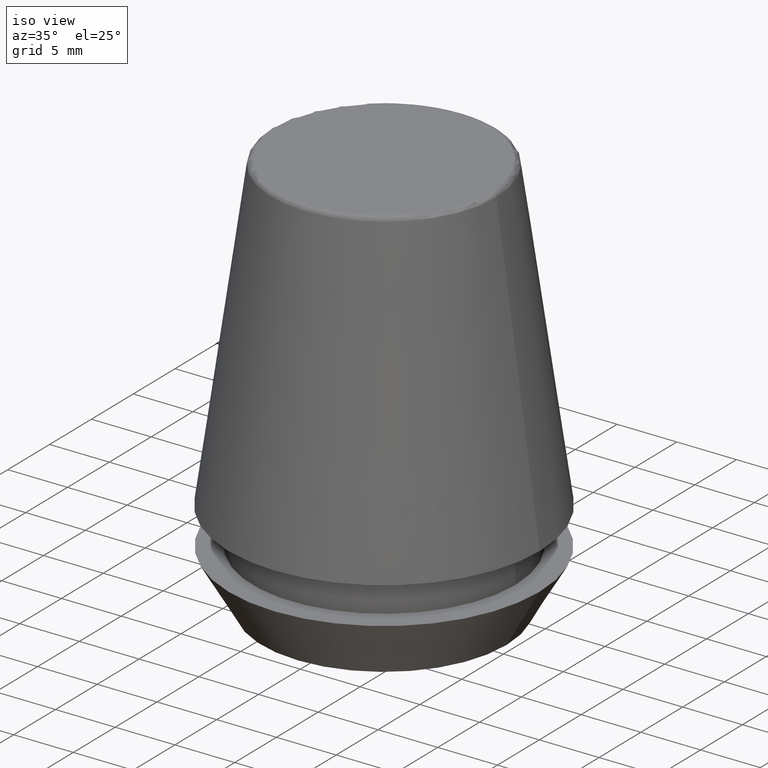
[diagram: clean part render]
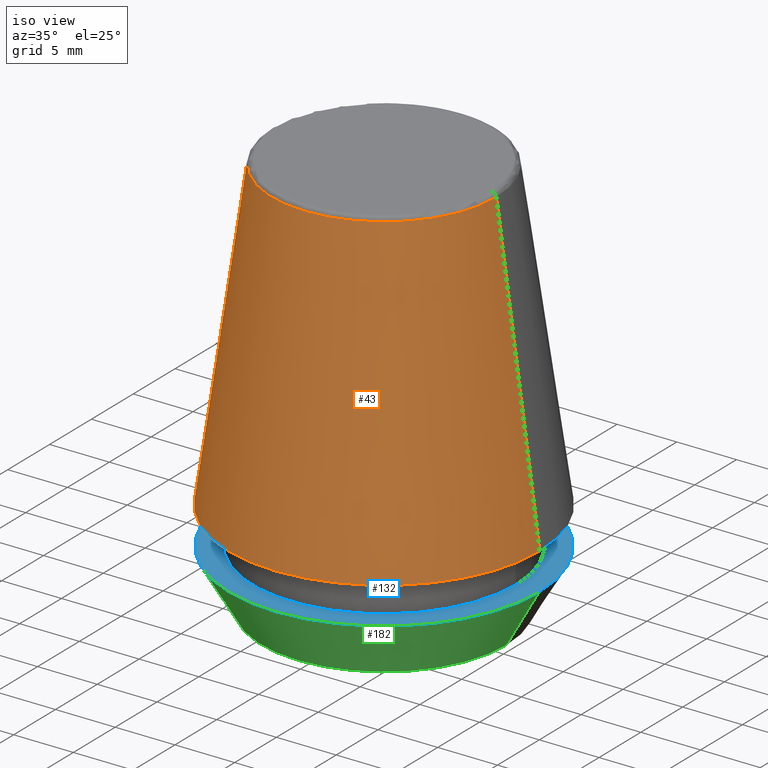
[diagram: same view with three faces highlighted in distinct colors, each labeled with its STEP entity id]
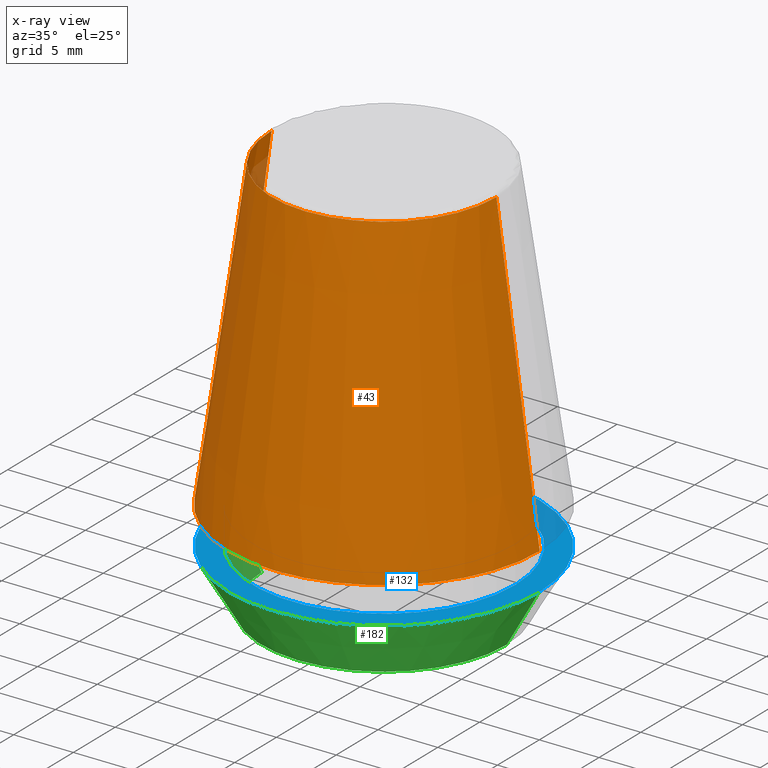
[diagram: x-ray of the same camera — body ghosted, the three highlighted faces saturated]
A machine part, iso view with three faces highlighted in distinct colors.
The next image is the same camera in x-ray (body ghosted, the three faces saturated) — at least one of them is partly hidden behind the body in this view.
Their STEP definitions:

[orange] entity #43 — the highlighted conical surface has half-angle 8 deg.
#10 = DIRECTION ( 'NONE',  ( 1.000000000000000000, 0.0000000000000000000, 0.0000000000000000000 ) ) ;
#43 = ADVANCED_FACE ( 'NONE', ( #188 ), #344, .T. ) ;
#49 = CARTESIAN_POINT ( 'NONE',  ( 13.03657776635556700, 1.596520323340289600E-015, 7.842050807568876200 ) ) ;
#69 = DIRECTION ( 'NONE',  ( 1.000000000000000000, 0.0000000000000000000, 0.0000000000000000000 ) ) ;
#77 = DIRECTION ( 'NONE',  ( 0.1391731009600587800, 1.704378926181474000E-017, -0.9902680687415712500 ) ) ;
#86 = CIRCLE ( 'NONE', #266, 9.408710285118862900 ) ;
#107 = DIRECTION ( 'NONE',  ( -0.0000000000000000000, -0.0000000000000000000, 1.000000000000000000 ) ) ;
#108 = CARTESIAN_POINT ( 'NONE',  ( -9.408710285118862900, 0.0000000000000000000, 33.65566924038402900 ) ) ;
#111 = DIRECTION ( 'NONE',  ( 0.0000000000000000000, 0.0000000000000000000, -1.000000000000000000 ) ) ;
#118 = ORIENTED_EDGE ( 'NONE', *, *, #175, .T. ) ;
#120 = LINE ( 'NONE', #290, #317 ) ;
#154 = VERTEX_POINT ( 'NONE', #108 ) ;
#155 = CARTESIAN_POINT ( 'NONE',  ( 9.408710285118862900, 1.374377508408924700E-015, 33.65566924038402900 ) ) ;
#156 = CIRCLE ( 'NONE', #251, 13.03657776635556700 ) ;
#159 = CARTESIAN_POINT ( 'NONE',  ( 0.0000000000000000000, 0.0000000000000000000, 33.65566924038402900 ) ) ;
#168 = DIRECTION ( 'NONE',  ( -1.000000000000000000, 0.0000000000000000000, 0.0000000000000000000 ) ) ;
#175 = EDGE_CURVE ( 'NONE', #338, #232, #156, .T. ) ;
#178 = EDGE_LOOP ( 'NONE', ( #181, #384, #292, #118 ) ) ;
#181 = ORIENTED_EDGE ( 'NONE', *, *, #366, .F. ) ;
#188 = FACE_OUTER_BOUND ( 'NONE', #178, .T. ) ;
#217 = EDGE_CURVE ( 'NONE', #154, #265, #86, .T. ) ;
#232 = VERTEX_POINT ( 'NONE', #329 ) ;
#250 = DIRECTION ( 'NONE',  ( -0.1391731009600587800, 0.0000000000000000000, -0.9902680687415712500 ) ) ;
#251 = AXIS2_PLACEMENT_3D ( 'NONE', #305, #107, #10 ) ;
#265 = VERTEX_POINT ( 'NONE', #155 ) ;
#266 = AXIS2_PLACEMENT_3D ( 'NONE', #159, #361, #69 ) ;
#273 = LINE ( 'NONE', #49, #375 ) ;
#284 = AXIS2_PLACEMENT_3D ( 'NONE', #356, #111, #168 ) ;
#290 = CARTESIAN_POINT ( 'NONE',  ( -13.03657776635556700, 0.0000000000000000000, 7.842050807568876200 ) ) ;
#292 = ORIENTED_EDGE ( 'NONE', *, *, #343, .T. ) ;
#298 = CARTESIAN_POINT ( 'NONE',  ( -13.03657776635556700, 0.0000000000000000000, 7.842050807568876200 ) ) ;
#305 = CARTESIAN_POINT ( 'NONE',  ( 0.0000000000000000000, 0.0000000000000000000, 7.842050807568876200 ) ) ;
#317 = VECTOR ( 'NONE', #250, 1000.000000000000000 ) ;
#329 = CARTESIAN_POINT ( 'NONE',  ( 13.03657776635556700, 1.596520323340289600E-015, 7.842050807568876200 ) ) ;
#338 = VERTEX_POINT ( 'NONE', #298 ) ;
#343 = EDGE_CURVE ( 'NONE', #154, #338, #120, .T. ) ;
#344 = CONICAL_SURFACE ( 'NONE', #284, 13.03657776635556700, 0.1396263401595396500 ) ;
#356 = CARTESIAN_POINT ( 'NONE',  ( 0.0000000000000000000, 0.0000000000000000000, 7.842050807568876200 ) ) ;
#361 = DIRECTION ( 'NONE',  ( -0.0000000000000000000, -0.0000000000000000000, 1.000000000000000000 ) ) ;
#366 = EDGE_CURVE ( 'NONE', #265, #232, #273, .T. ) ;
#375 = VECTOR ( 'NONE', #77, 1000.000000000000000 ) ;
#384 = ORIENTED_EDGE ( 'NONE', *, *, #217, .F. ) ;

[blue] entity #132 — the highlighted planar face has unit normal (0, 0, -1).
#5 = CARTESIAN_POINT ( 'NONE',  ( 0.0000000000000000000, 0.0000000000000000000, 4.742050807568884500 ) ) ;
#6 = VERTEX_POINT ( 'NONE', #258 ) ;
#19 = VERTEX_POINT ( 'NONE', #308 ) ;
#29 = DIRECTION ( 'NONE',  ( -0.0000000000000000000, -0.0000000000000000000, 1.000000000000000000 ) ) ;
#34 = FACE_BOUND ( 'NONE', #143, .T. ) ;
#36 = DIRECTION ( 'NONE',  ( 1.000000000000000000, 0.0000000000000000000, 0.0000000000000000000 ) ) ;
#44 = FACE_OUTER_BOUND ( 'NONE', #259, .T. ) ;
#48 = DIRECTION ( 'NONE',  ( 0.0000000000000000000, 0.0000000000000000000, -1.000000000000000000 ) ) ;
#56 = AXIS2_PLACEMENT_3D ( 'NONE', #60, #351, #240 ) ;
#60 = CARTESIAN_POINT ( 'NONE',  ( 0.0000000000000000000, 0.0000000000000000000, 4.742050807568884500 ) ) ;
#68 = VERTEX_POINT ( 'NONE', #151 ) ;
#94 = CIRCLE ( 'NONE', #157, 13.00000000000000000 ) ;
#132 = ADVANCED_FACE ( 'NONE', ( #34, #44 ), #227, .F. ) ;
#142 = VERTEX_POINT ( 'NONE', #288 ) ;
#143 = EDGE_LOOP ( 'NONE', ( #374, #306 ) ) ;
#151 = CARTESIAN_POINT ( 'NONE',  ( -13.00000000000000000, 1.592040838891559100E-015, 4.742050807568884500 ) ) ;
#157 = AXIS2_PLACEMENT_3D ( 'NONE', #326, #387, #201 ) ;
#158 = CIRCLE ( 'NONE', #198, 11.00000000000000000 ) ;
#163 = AXIS2_PLACEMENT_3D ( 'NONE', #303, #193, #36 ) ;
#170 = CIRCLE ( 'NONE', #163, 11.00000000000000000 ) ;
#184 = DIRECTION ( 'NONE',  ( -1.000000000000000000, 0.0000000000000000000, -0.0000000000000000000 ) ) ;
#193 = DIRECTION ( 'NONE',  ( -0.0000000000000000000, -0.0000000000000000000, 1.000000000000000000 ) ) ;
#198 = AXIS2_PLACEMENT_3D ( 'NONE', #5, #29, #348 ) ;
#201 = DIRECTION ( 'NONE',  ( 1.000000000000000000, 0.0000000000000000000, 0.0000000000000000000 ) ) ;
#213 = EDGE_CURVE ( 'NONE', #19, #142, #170, .T. ) ;
#219 = CIRCLE ( 'NONE', #56, 13.00000000000000000 ) ;
#227 = PLANE ( 'NONE',  #318 ) ;
#240 = DIRECTION ( 'NONE',  ( 1.000000000000000000, 0.0000000000000000000, 0.0000000000000000000 ) ) ;
#258 = CARTESIAN_POINT ( 'NONE',  ( 13.00000000000000000, 0.0000000000000000000, 4.742050807568884500 ) ) ;
#259 = EDGE_LOOP ( 'NONE', ( #275, #270 ) ) ;
#270 = ORIENTED_EDGE ( 'NONE', *, *, #362, .T. ) ;
#275 = ORIENTED_EDGE ( 'NONE', *, *, #312, .T. ) ;
#288 = CARTESIAN_POINT ( 'NONE',  ( -11.00000000000000000, 1.347111479062088400E-015, 4.742050807568884500 ) ) ;
#303 = CARTESIAN_POINT ( 'NONE',  ( 0.0000000000000000000, 0.0000000000000000000, 4.742050807568884500 ) ) ;
#306 = ORIENTED_EDGE ( 'NONE', *, *, #372, .F. ) ;
#308 = CARTESIAN_POINT ( 'NONE',  ( 11.00000000000000000, 0.0000000000000000000, 4.742050807568884500 ) ) ;
#312 = EDGE_CURVE ( 'NONE', #6, #68, #219, .T. ) ;
#318 = AXIS2_PLACEMENT_3D ( 'NONE', #370, #48, #184 ) ;
#326 = CARTESIAN_POINT ( 'NONE',  ( 0.0000000000000000000, 0.0000000000000000000, 4.742050807568884500 ) ) ;
#348 = DIRECTION ( 'NONE',  ( 1.000000000000000000, 0.0000000000000000000, 0.0000000000000000000 ) ) ;
#351 = DIRECTION ( 'NONE',  ( -0.0000000000000000000, -0.0000000000000000000, 1.000000000000000000 ) ) ;
#362 = EDGE_CURVE ( 'NONE', #68, #6, #94, .T. ) ;
#370 = CARTESIAN_POINT ( 'NONE',  ( 0.0000000000000000000, 13.00000000000000000, 4.742050807568884500 ) ) ;
#372 = EDGE_CURVE ( 'NONE', #142, #19, #158, .T. ) ;
#374 = ORIENTED_EDGE ( 'NONE', *, *, #213, .F. ) ;
#387 = DIRECTION ( 'NONE',  ( -0.0000000000000000000, -0.0000000000000000000, 1.000000000000000000 ) ) ;

[green] entity #182 — the highlighted conical surface has half-angle 30 deg.
#1 = CARTESIAN_POINT ( 'NONE',  ( -10.26217568973925200, 1.256754061072695800E-015, 0.0000000000000000000 ) ) ;
#6 = VERTEX_POINT ( 'NONE', #258 ) ;
#8 = LINE ( 'NONE', #23, #301 ) ;
#23 = CARTESIAN_POINT ( 'NONE',  ( 10.26217568973925200, 0.0000000000000000000, 0.0000000000000000000 ) ) ;
#27 = ORIENTED_EDGE ( 'NONE', *, *, #302, .F. ) ;
#40 = CIRCLE ( 'NONE', #231, 10.26217568973925200 ) ;
#45 = CARTESIAN_POINT ( 'NONE',  ( -10.26217568973925200, 1.424397449982127500E-015, 0.0000000000000000000 ) ) ;
#55 = EDGE_LOOP ( 'NONE', ( #27, #137, #144, #195 ) ) ;
#67 = CARTESIAN_POINT ( 'NONE',  ( 0.0000000000000000000, 0.0000000000000000000, 0.0000000000000000000 ) ) ;
#68 = VERTEX_POINT ( 'NONE', #151 ) ;
#94 = CIRCLE ( 'NONE', #157, 13.00000000000000000 ) ;
#96 = DIRECTION ( 'NONE',  ( -0.4999999999999957800, 6.123233995736714300E-017, 0.8660254037844410400 ) ) ;
#99 = VERTEX_POINT ( 'NONE', #45 ) ;
#110 = FACE_OUTER_BOUND ( 'NONE', #55, .T. ) ;
#128 = DIRECTION ( 'NONE',  ( -0.0000000000000000000, -0.0000000000000000000, 1.000000000000000000 ) ) ;
#135 = VECTOR ( 'NONE', #96, 1000.000000000000200 ) ;
#137 = ORIENTED_EDGE ( 'NONE', *, *, #223, .T. ) ;
#144 = ORIENTED_EDGE ( 'NONE', *, *, #381, .T. ) ;
#151 = CARTESIAN_POINT ( 'NONE',  ( -13.00000000000000000, 1.592040838891559100E-015, 4.742050807568884500 ) ) ;
#157 = AXIS2_PLACEMENT_3D ( 'NONE', #326, #387, #201 ) ;
#161 = CARTESIAN_POINT ( 'NONE',  ( 10.26217568973925200, 0.0000000000000000000, 0.0000000000000000000 ) ) ;
#182 = ADVANCED_FACE ( 'NONE', ( #110 ), #279, .T. ) ;
#190 = DIRECTION ( 'NONE',  ( 1.000000000000000000, 0.0000000000000000000, 0.0000000000000000000 ) ) ;
#195 = ORIENTED_EDGE ( 'NONE', *, *, #362, .F. ) ;
#201 = DIRECTION ( 'NONE',  ( 1.000000000000000000, 0.0000000000000000000, 0.0000000000000000000 ) ) ;
#210 = LINE ( 'NONE', #1, #135 ) ;
#218 = VERTEX_POINT ( 'NONE', #161 ) ;
#223 = EDGE_CURVE ( 'NONE', #99, #218, #40, .T. ) ;
#224 = CARTESIAN_POINT ( 'NONE',  ( 0.0000000000000000000, 0.0000000000000000000, 0.0000000000000000000 ) ) ;
#231 = AXIS2_PLACEMENT_3D ( 'NONE', #67, #128, #190 ) ;
#255 = DIRECTION ( 'NONE',  ( 1.000000000000000000, 0.0000000000000000000, 0.0000000000000000000 ) ) ;
#258 = CARTESIAN_POINT ( 'NONE',  ( 13.00000000000000000, 0.0000000000000000000, 4.742050807568884500 ) ) ;
#278 = DIRECTION ( 'NONE',  ( -0.0000000000000000000, -0.0000000000000000000, 1.000000000000000000 ) ) ;
#279 = CONICAL_SURFACE ( 'NONE', #383, 10.26217568973925200, 0.5235987755982940400 ) ;
#301 = VECTOR ( 'NONE', #345, 1000.000000000000200 ) ;
#302 = EDGE_CURVE ( 'NONE', #99, #68, #210, .T. ) ;
#326 = CARTESIAN_POINT ( 'NONE',  ( 0.0000000000000000000, 0.0000000000000000000, 4.742050807568884500 ) ) ;
#345 = DIRECTION ( 'NONE',  ( 0.4999999999999957800, 0.0000000000000000000, 0.8660254037844410400 ) ) ;
#362 = EDGE_CURVE ( 'NONE', #68, #6, #94, .T. ) ;
#381 = EDGE_CURVE ( 'NONE', #218, #6, #8, .T. ) ;
#383 = AXIS2_PLACEMENT_3D ( 'NONE', #224, #278, #255 ) ;
#387 = DIRECTION ( 'NONE',  ( -0.0000000000000000000, -0.0000000000000000000, 1.000000000000000000 ) ) ;